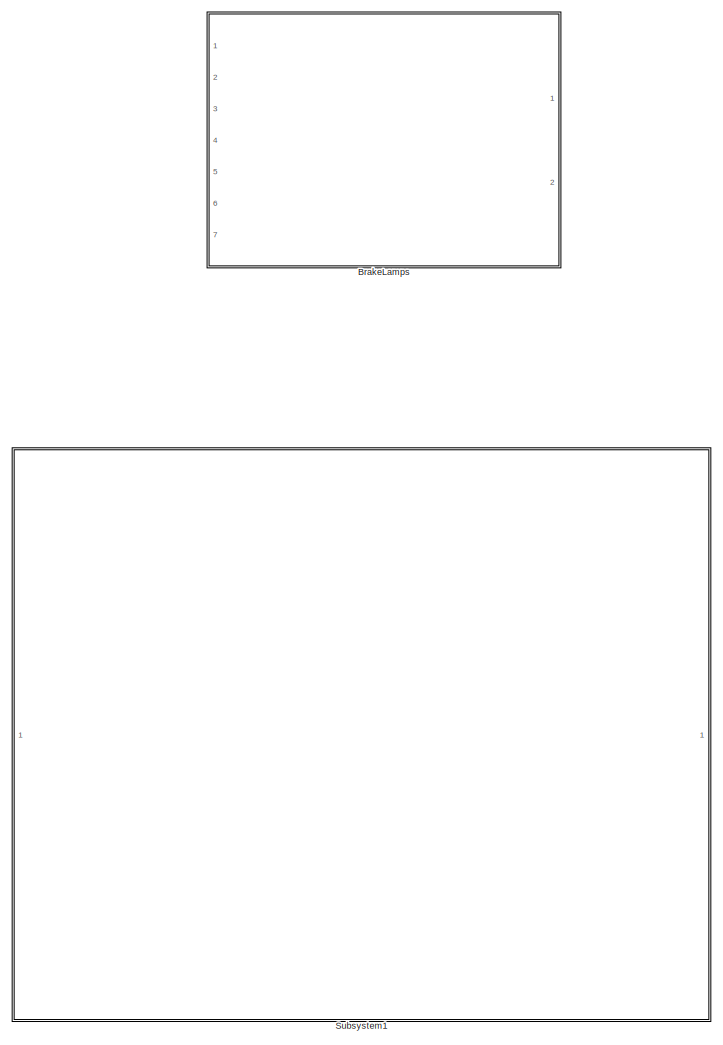
[diagram: root canvas - part 1/2, right side, full height]
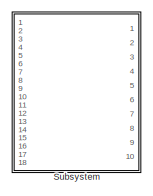
[diagram: root canvas - part 2/2, middle left region]
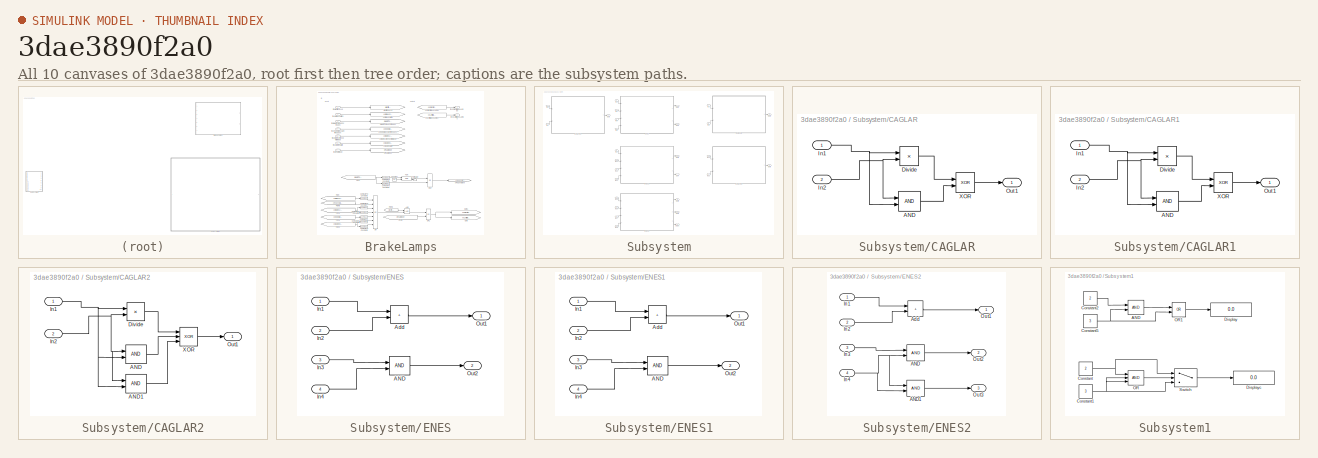
[diagram: thumbnail index - all 10 canvases of the model, root first then tree order]
MODEL slx_3dae3890f2a0
KIND model
CONFIG AbsTol = auto
CONFIG EnableMultiTasking = off
CONFIG FixedStep = auto
CONFIG MaxStep = auto
CONFIG MinStep = auto
CONFIG RelTol = 1e-3
CONFIG SampleTimeConstraint = Unconstrained
CONFIG SolverName = VariableStepAuto
CONFIG StartTime = 0.0
CONFIG StopTime = 10.0
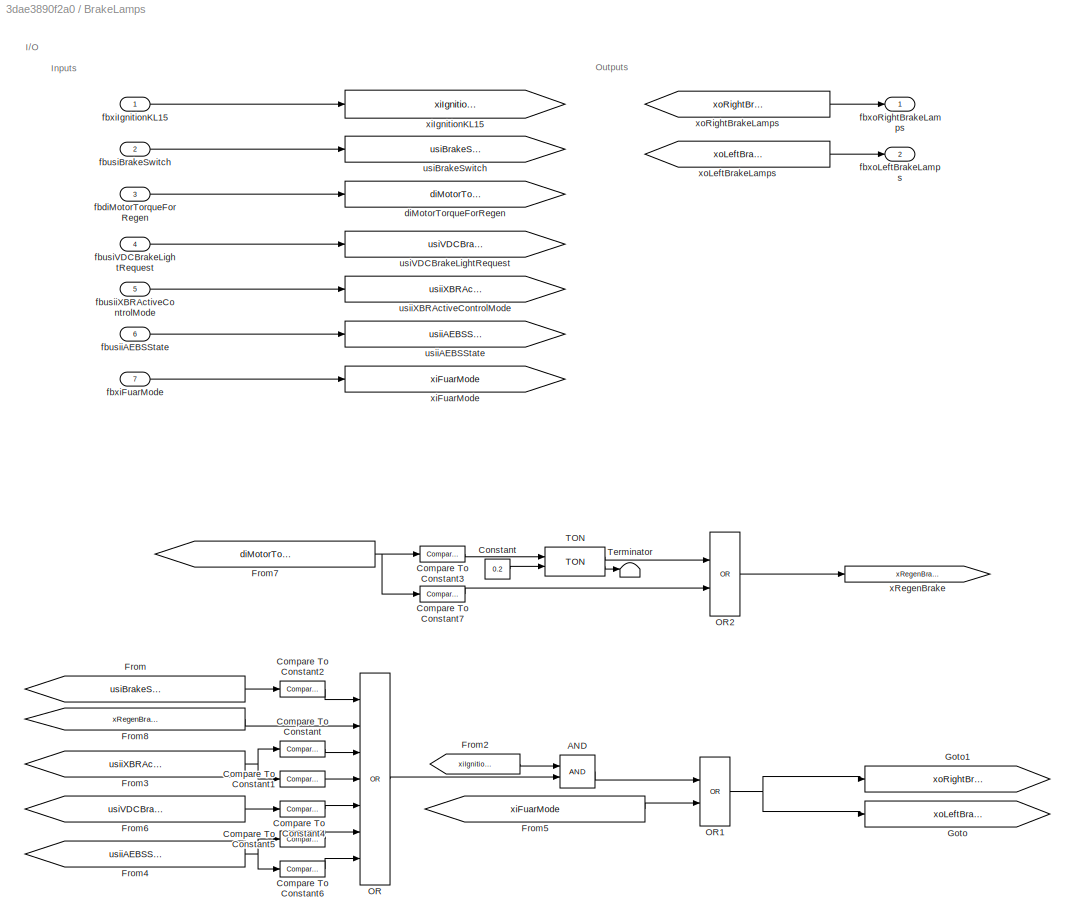
BLOCK [SubSystem] BrakeLamps
  Ports = [7, 2]
  RequestExecContextInheritance = off
  TreatAsAtomicUnit = on
BLOCK [Logic] BrakeLamps/AND
  AllPortsSameDT = off
  OutDataTypeStr = boolean
  Ports = [2, 1]
BLOCK [Reference] BrakeLamps/Compare To Constant  REF=simulink/Logic and Bit
Operations/Compare
To Constant
  Ports = [1, 1]
  SourceBlock = simulink/Logic and Bit\nOperations/Compare\nTo Constant
  SourceProductBaseCode = SL
  SourceType = Compare To Constant
BLOCK [Reference] BrakeLamps/Compare To Constant1  REF=simulink/Logic and Bit
Operations/Compare
To Constant
  Ports = [1, 1]
  SourceBlock = simulink/Logic and Bit\nOperations/Compare\nTo Constant
  SourceProductBaseCode = SL
  SourceType = Compare To Constant
BLOCK [Reference] BrakeLamps/Compare To Constant2  REF=simulink/Logic and Bit
Operations/Compare
To Constant
  Ports = [1, 1]
  SourceBlock = simulink/Logic and Bit\nOperations/Compare\nTo Constant
  SourceProductBaseCode = SL
  SourceType = Compare To Constant
BLOCK [Reference] BrakeLamps/Compare To Constant3  REF=simulink/Logic and Bit
Operations/Compare
To Constant
  Ports = [1, 1]
  SourceBlock = simulink/Logic and Bit\nOperations/Compare\nTo Constant
  SourceProductBaseCode = SL
  SourceType = Compare To Constant
BLOCK [Reference] BrakeLamps/Compare To Constant4  REF=simulink/Logic and Bit
Operations/Compare
To Constant
  Ports = [1, 1]
  SourceBlock = simulink/Logic and Bit\nOperations/Compare\nTo Constant
  SourceProductBaseCode = SL
  SourceType = Compare To Constant
BLOCK [Reference] BrakeLamps/Compare To Constant5  REF=simulink/Logic and Bit
Operations/Compare
To Constant
  Ports = [1, 1]
  SourceBlock = simulink/Logic and Bit\nOperations/Compare\nTo Constant
  SourceProductBaseCode = SL
  SourceType = Compare To Constant
BLOCK [Reference] BrakeLamps/Compare To Constant6  REF=simulink/Logic and Bit
Operations/Compare
To Constant
  Ports = [1, 1]
  SourceBlock = simulink/Logic and Bit\nOperations/Compare\nTo Constant
  SourceProductBaseCode = SL
  SourceType = Compare To Constant
BLOCK [Reference] BrakeLamps/Compare To Constant7  REF=simulink/Logic and Bit
Operations/Compare
To Constant
  Ports = [1, 1]
  SourceBlock = simulink/Logic and Bit\nOperations/Compare\nTo Constant
  SourceProductBaseCode = SL
  SourceType = Compare To Constant
BLOCK [Constant] BrakeLamps/Constant
  OutDataTypeStr = single
  Value = 0.2
BLOCK [From] BrakeLamps/From
  GotoTag = usiBrakeSwitch
BLOCK [From] BrakeLamps/From2
  GotoTag = xiIgnitionKL15
BLOCK [From] BrakeLamps/From3
  GotoTag = usiiXBRActiveControlMode
BLOCK [From] BrakeLamps/From4
  GotoTag = usiiAEBSState
BLOCK [From] BrakeLamps/From5
  GotoTag = xiFuarMode
BLOCK [From] BrakeLamps/From6
  GotoTag = usiVDCBrakeLightRequest
BLOCK [From] BrakeLamps/From7
  GotoTag = diMotorTorqueForRegen
BLOCK [From] BrakeLamps/From8
  GotoTag = xRegenBrake
BLOCK [Goto] BrakeLamps/Goto
  GotoTag = xoLeftBrakeLamps
BLOCK [Goto] BrakeLamps/Goto1
  GotoTag = xoRightBrakeLamps
BLOCK [Logic] BrakeLamps/OR
  AllPortsSameDT = off
  Inputs = 7
  Operator = OR
  OutDataTypeStr = boolean
  Ports = [7, 1]
BLOCK [Logic] BrakeLamps/OR1
  AllPortsSameDT = off
  Operator = OR
  OutDataTypeStr = boolean
  Ports = [2, 1]
BLOCK [Logic] BrakeLamps/OR2
  AllPortsSameDT = off
  Operator = OR
  OutDataTypeStr = boolean
  Ports = [2, 1]
BLOCK [Reference] BrakeLamps/TON  REF=AIOS_Lib/Standart Functions/TON
  Ports = [2, 2]
  SourceBlock = AIOS_Lib/Standart Functions/TON
  SourceProductName = AIOS Lib
BLOCK [Terminator] BrakeLamps/Terminator
BLOCK [Goto] BrakeLamps/diMotorTorqueForRegen
  GotoTag = diMotorTorqueForRegen
BLOCK [Inport] BrakeLamps/fbdiMotorTorqueForRegen
  OutDataTypeStr = double
  Port = 3
BLOCK [Inport] BrakeLamps/fbusiBrakeSwitch
  OutDataTypeStr = uint8
  Port = 2
BLOCK [Inport] BrakeLamps/fbusiVDCBrakeLightRequest
  OutDataTypeStr = uint8
  Port = 4
BLOCK [Inport] BrakeLamps/fbusiiAEBSState
  OutDataTypeStr = uint8
  Port = 6
BLOCK [Inport] BrakeLamps/fbusiiXBRActiveControlMode
  OutDataTypeStr = uint8
  Port = 5
BLOCK [Inport] BrakeLamps/fbxiFuarMode
  OutDataTypeStr = boolean
  Port = 7
BLOCK [Inport] BrakeLamps/fbxiIgnitionKL15
  OutDataTypeStr = boolean
BLOCK [Outport] BrakeLamps/fbxoLeftBrakeLamps
  OutDataTypeStr = boolean
  Port = 2
  VectorParamsAs1DForOutWhenUnconnected = off
BLOCK [Outport] BrakeLamps/fbxoRightBrakeLamps
  OutDataTypeStr = boolean
  VectorParamsAs1DForOutWhenUnconnected = off
BLOCK [Goto] BrakeLamps/usiBrakeSwitch
  GotoTag = usiBrakeSwitch
BLOCK [Goto] BrakeLamps/usiVDCBrakeLightRequest
  GotoTag = usiVDCBrakeLightRequest
BLOCK [Goto] BrakeLamps/usiiAEBSState
  GotoTag = usiiAEBSState
BLOCK [Goto] BrakeLamps/usiiXBRActiveControlMode
  GotoTag = usiiXBRActiveControlMode
BLOCK [Goto] BrakeLamps/xRegenBrake
  GotoTag = xRegenBrake
BLOCK [Goto] BrakeLamps/xiFuarMode
  GotoTag = xiFuarMode
BLOCK [Goto] BrakeLamps/xiIgnitionKL15
  GotoTag = xiIgnitionKL15
BLOCK [From] BrakeLamps/xoLeftBrakeLamps
  GotoTag = xoLeftBrakeLamps
BLOCK [From] BrakeLamps/xoRightBrakeLamps
  GotoTag = xoRightBrakeLamps
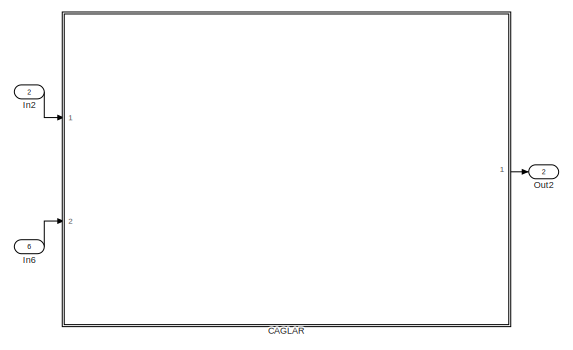
[diagram: Subsystem - part 1/3, top right region]
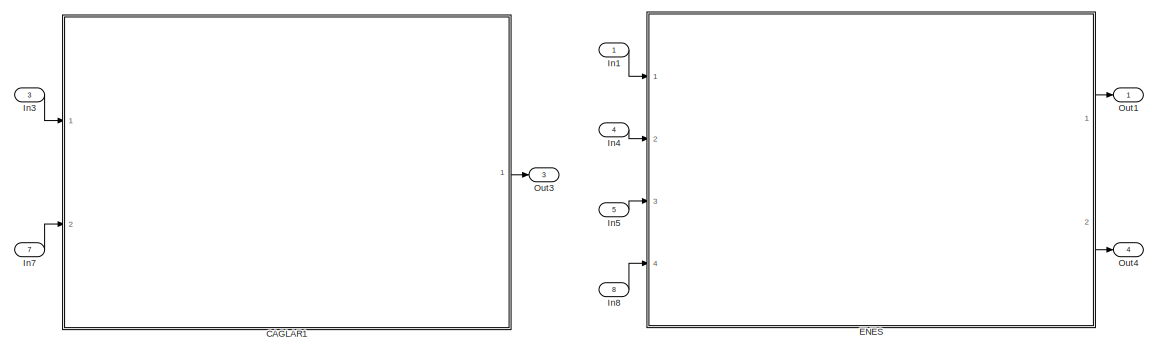
[diagram: Subsystem - part 2/3, top left region]
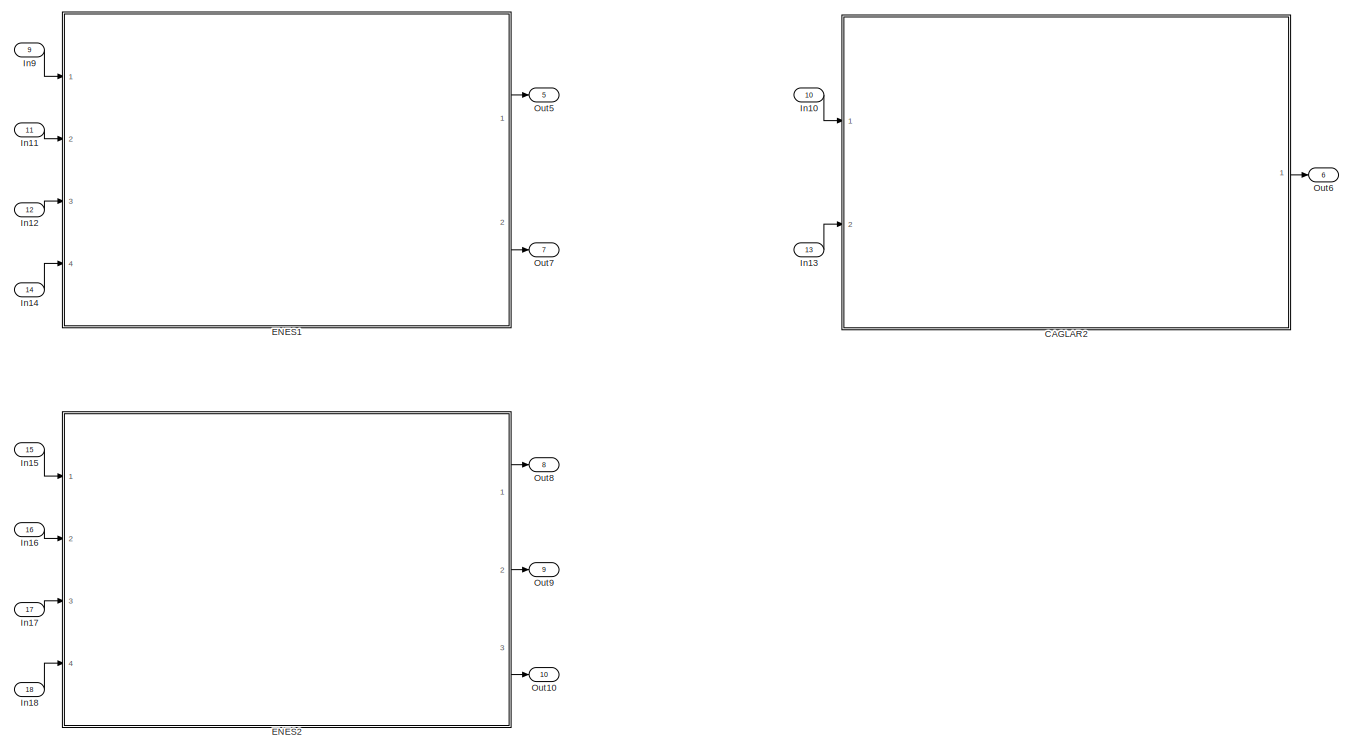
[diagram: Subsystem - part 3/3, bottom center region]
BLOCK [SubSystem] Subsystem
  Ports = [18, 10]
  RequestExecContextInheritance = off
BLOCK [SubSystem] Subsystem/CAGLAR
  Ports = [2, 1]
  RequestExecContextInheritance = off
BLOCK [Logic] Subsystem/CAGLAR/AND
  AllPortsSameDT = off
  IconShape = distinctive
  OutDataTypeStr = boolean
  Ports = [2, 1]
BLOCK [Product] Subsystem/CAGLAR/Divide
  Inputs = */
  Ports = [2, 1]
BLOCK [Inport] Subsystem/CAGLAR/In1
BLOCK [Inport] Subsystem/CAGLAR/In2
  Port = 2
BLOCK [Outport] Subsystem/CAGLAR/Out1
BLOCK [Logic] Subsystem/CAGLAR/XOR
  AllPortsSameDT = off
  IconShape = distinctive
  Operator = XOR
  OutDataTypeStr = boolean
  Ports = [2, 1]
BLOCK [SubSystem] Subsystem/CAGLAR1
  Ports = [2, 1]
  RequestExecContextInheritance = off
BLOCK [Logic] Subsystem/CAGLAR1/AND
  AllPortsSameDT = off
  IconShape = distinctive
  OutDataTypeStr = boolean
  Ports = [2, 1]
BLOCK [Product] Subsystem/CAGLAR1/Divide
  Inputs = */
  Ports = [2, 1]
BLOCK [Inport] Subsystem/CAGLAR1/In1
BLOCK [Inport] Subsystem/CAGLAR1/In2
  Port = 2
BLOCK [Outport] Subsystem/CAGLAR1/Out1
BLOCK [Logic] Subsystem/CAGLAR1/XOR
  AllPortsSameDT = off
  IconShape = distinctive
  Operator = XOR
  OutDataTypeStr = boolean
  Ports = [2, 1]
BLOCK [SubSystem] Subsystem/CAGLAR2
  Ports = [2, 1]
  RequestExecContextInheritance = off
BLOCK [Logic] Subsystem/CAGLAR2/AND
  AllPortsSameDT = off
  IconShape = distinctive
  OutDataTypeStr = boolean
  Ports = [2, 1]
BLOCK [Logic] Subsystem/CAGLAR2/AND1
  AllPortsSameDT = off
  IconShape = distinctive
  OutDataTypeStr = boolean
  Ports = [2, 1]
BLOCK [Product] Subsystem/CAGLAR2/Divide
  Inputs = */
  Ports = [2, 1]
BLOCK [Inport] Subsystem/CAGLAR2/In1
BLOCK [Inport] Subsystem/CAGLAR2/In2
  Port = 2
BLOCK [Outport] Subsystem/CAGLAR2/Out1
BLOCK [Logic] Subsystem/CAGLAR2/XOR
  AllPortsSameDT = off
  IconShape = distinctive
  Inputs = 3
  Operator = XOR
  OutDataTypeStr = boolean
  Ports = [3, 1]
BLOCK [SubSystem] Subsystem/ENES
  Ports = [4, 2]
  RequestExecContextInheritance = off
BLOCK [Logic] Subsystem/ENES/AND
  AllPortsSameDT = off
  IconShape = distinctive
  OutDataTypeStr = boolean
  Ports = [2, 1]
BLOCK [Sum] Subsystem/ENES/Add
  IconShape = rectangular
  Ports = [2, 1]
BLOCK [Inport] Subsystem/ENES/In1
BLOCK [Inport] Subsystem/ENES/In2
  Port = 2
BLOCK [Inport] Subsystem/ENES/In3
  Port = 3
BLOCK [Inport] Subsystem/ENES/In4
  Port = 4
BLOCK [Outport] Subsystem/ENES/Out1
BLOCK [Outport] Subsystem/ENES/Out2
  Port = 2
BLOCK [SubSystem] Subsystem/ENES1
  Ports = [4, 2]
  RequestExecContextInheritance = off
BLOCK [Logic] Subsystem/ENES1/AND
  AllPortsSameDT = off
  IconShape = distinctive
  OutDataTypeStr = boolean
  Ports = [2, 1]
BLOCK [Sum] Subsystem/ENES1/Add
  IconShape = rectangular
  Ports = [2, 1]
BLOCK [Inport] Subsystem/ENES1/In1
BLOCK [Inport] Subsystem/ENES1/In2
  Port = 2
BLOCK [Inport] Subsystem/ENES1/In3
  Port = 3
BLOCK [Inport] Subsystem/ENES1/In4
  Port = 4
BLOCK [Outport] Subsystem/ENES1/Out1
BLOCK [Outport] Subsystem/ENES1/Out2
  Port = 2
BLOCK [SubSystem] Subsystem/ENES2
  Ports = [4, 3]
  RequestExecContextInheritance = off
BLOCK [Logic] Subsystem/ENES2/AND
  AllPortsSameDT = off
  IconShape = distinctive
  OutDataTypeStr = boolean
  Ports = [2, 1]
BLOCK [Logic] Subsystem/ENES2/AND1
  AllPortsSameDT = off
  IconShape = distinctive
  OutDataTypeStr = boolean
  Ports = [2, 1]
BLOCK [Sum] Subsystem/ENES2/Add
  IconShape = rectangular
  Ports = [2, 1]
BLOCK [Inport] Subsystem/ENES2/In1
BLOCK [Inport] Subsystem/ENES2/In2
  Port = 2
BLOCK [Inport] Subsystem/ENES2/In3
  Port = 3
BLOCK [Inport] Subsystem/ENES2/In4
  Port = 4
BLOCK [Outport] Subsystem/ENES2/Out1
BLOCK [Outport] Subsystem/ENES2/Out2
  Port = 2
BLOCK [Outport] Subsystem/ENES2/Out3
  Port = 3
BLOCK [Inport] Subsystem/In1
BLOCK [Inport] Subsystem/In10
  Port = 10
BLOCK [Inport] Subsystem/In11
  Port = 11
BLOCK [Inport] Subsystem/In12
  Port = 12
BLOCK [Inport] Subsystem/In13
  Port = 13
BLOCK [Inport] Subsystem/In14
  Port = 14
BLOCK [Inport] Subsystem/In15
  Port = 15
BLOCK [Inport] Subsystem/In16
  Port = 16
BLOCK [Inport] Subsystem/In17
  Port = 17
BLOCK [Inport] Subsystem/In18
  Port = 18
BLOCK [Inport] Subsystem/In2
  Port = 2
BLOCK [Inport] Subsystem/In3
  Port = 3
BLOCK [Inport] Subsystem/In4
  Port = 4
BLOCK [Inport] Subsystem/In5
  Port = 5
BLOCK [Inport] Subsystem/In6
  Port = 6
BLOCK [Inport] Subsystem/In7
  Port = 7
BLOCK [Inport] Subsystem/In8
  Port = 8
BLOCK [Inport] Subsystem/In9
  Port = 9
BLOCK [Outport] Subsystem/Out1
BLOCK [Outport] Subsystem/Out10
  Port = 10
BLOCK [Outport] Subsystem/Out2
  Port = 2
BLOCK [Outport] Subsystem/Out3
  Port = 3
BLOCK [Outport] Subsystem/Out4
  Port = 4
BLOCK [Outport] Subsystem/Out5
  Port = 5
BLOCK [Outport] Subsystem/Out6
  Port = 6
BLOCK [Outport] Subsystem/Out7
  Port = 7
BLOCK [Outport] Subsystem/Out8
  Port = 8
BLOCK [Outport] Subsystem/Out9
  Port = 9
BLOCK [SubSystem] Subsystem1
  Ports = []
  RequestExecContextInheritance = off
BLOCK [Logic] Subsystem1/AND
  AllPortsSameDT = off
  IconShape = distinctive
  OutDataTypeStr = boolean
  Ports = [2, 1]
BLOCK [Constant] Subsystem1/Constant
  Value = 2
BLOCK [Constant] Subsystem1/Constant1
  Value = 3
BLOCK [Constant] Subsystem1/Constant2
  Value = 2
BLOCK [Constant] Subsystem1/Constant5
  Value = 3
BLOCK [Display] Subsystem1/Display
  Decimation = 1
  Ports = [1]
BLOCK [Display] Subsystem1/Displayc
  Decimation = 1
  Ports = [1]
BLOCK [Logic] Subsystem1/OR
  AllPortsSameDT = off
  IconShape = distinctive
  Inputs = 3
  OutDataTypeStr = boolean
  Ports = [3, 1]
BLOCK [Logic] Subsystem1/OR1
  AllPortsSameDT = off
  IconShape = distinctive
  Operator = OR
  OutDataTypeStr = boolean
  Ports = [2, 1]
BLOCK [Switch] Subsystem1/Switch
  Criteria = u2 > Threshold
  InputSameDT = off
  SaturateOnIntegerOverflow = off
  Threshold = 1
ANNOTATION BrakeLamps: I/O
ANNOTATION BrakeLamps: Inputs
ANNOTATION BrakeLamps: Outputs
LINE BrakeLamps/AND:1 -> BrakeLamps/OR1:1
LINE BrakeLamps/Compare To Constant1:1 -> BrakeLamps/OR:4
LINE BrakeLamps/Compare To Constant2:1 -> BrakeLamps/OR:1
LINE BrakeLamps/Compare To Constant3:1 -> BrakeLamps/TON:1
LINE BrakeLamps/Compare To Constant4:1 -> BrakeLamps/OR:5
LINE BrakeLamps/Compare To Constant5:1 -> BrakeLamps/OR:6
LINE BrakeLamps/Compare To Constant6:1 -> BrakeLamps/OR:7
LINE BrakeLamps/Compare To Constant7:1 -> BrakeLamps/OR2:2
LINE BrakeLamps/Compare To Constant:1 -> BrakeLamps/OR:3
LINE BrakeLamps/Constant:1 -> BrakeLamps/TON:2
LINE BrakeLamps/From2:1 -> BrakeLamps/AND:1
NET BrakeLamps/From3:1 -> BrakeLamps/Compare To Constant1:1, BrakeLamps/Compare To Constant:1
NET BrakeLamps/From4:1 -> BrakeLamps/Compare To Constant5:1, BrakeLamps/Compare To Constant6:1
LINE BrakeLamps/From5:1 -> BrakeLamps/OR1:2
LINE BrakeLamps/From6:1 -> BrakeLamps/Compare To Constant4:1
NET BrakeLamps/From7:1 -> BrakeLamps/Compare To Constant3:1, BrakeLamps/Compare To Constant7:1
LINE BrakeLamps/From8:1 -> BrakeLamps/OR:2
LINE BrakeLamps/From:1 -> BrakeLamps/Compare To Constant2:1
NET BrakeLamps/OR1:1 -> BrakeLamps/Goto1:1, BrakeLamps/Goto:1
LINE BrakeLamps/OR2:1 -> BrakeLamps/xRegenBrake:1
LINE BrakeLamps/OR:1 -> BrakeLamps/AND:2
LINE BrakeLamps/TON:1 -> BrakeLamps/OR2:1
LINE BrakeLamps/TON:2 -> BrakeLamps/Terminator:1
LINE BrakeLamps/fbdiMotorTorqueForRegen:1 -> BrakeLamps/diMotorTorqueForRegen:1
LINE BrakeLamps/fbusiBrakeSwitch:1 -> BrakeLamps/usiBrakeSwitch:1
LINE BrakeLamps/fbusiVDCBrakeLightRequest:1 -> BrakeLamps/usiVDCBrakeLightRequest:1
LINE BrakeLamps/fbusiiAEBSState:1 -> BrakeLamps/usiiAEBSState:1
LINE BrakeLamps/fbusiiXBRActiveControlMode:1 -> BrakeLamps/usiiXBRActiveControlMode:1
LINE BrakeLamps/fbxiFuarMode:1 -> BrakeLamps/xiFuarMode:1
LINE BrakeLamps/fbxiIgnitionKL15:1 -> BrakeLamps/xiIgnitionKL15:1
LINE BrakeLamps/xoLeftBrakeLamps:1 -> BrakeLamps/fbxoLeftBrakeLamps:1
LINE BrakeLamps/xoRightBrakeLamps:1 -> BrakeLamps/fbxoRightBrakeLamps:1
LINE Subsystem/CAGLAR/AND:1 -> Subsystem/CAGLAR/XOR:2
LINE Subsystem/CAGLAR/Divide:1 -> Subsystem/CAGLAR/XOR:1
NET Subsystem/CAGLAR/In1:1 -> Subsystem/CAGLAR/AND:2, Subsystem/CAGLAR/Divide:1
NET Subsystem/CAGLAR/In2:1 -> Subsystem/CAGLAR/AND:1, Subsystem/CAGLAR/Divide:2
LINE Subsystem/CAGLAR/XOR:1 -> Subsystem/CAGLAR/Out1:1
LINE Subsystem/CAGLAR1/AND:1 -> Subsystem/CAGLAR1/XOR:2
LINE Subsystem/CAGLAR1/Divide:1 -> Subsystem/CAGLAR1/XOR:1
NET Subsystem/CAGLAR1/In1:1 -> Subsystem/CAGLAR1/AND:2, Subsystem/CAGLAR1/Divide:1
NET Subsystem/CAGLAR1/In2:1 -> Subsystem/CAGLAR1/AND:1, Subsystem/CAGLAR1/Divide:2
LINE Subsystem/CAGLAR1/XOR:1 -> Subsystem/CAGLAR1/Out1:1
LINE Subsystem/CAGLAR1:1 -> Subsystem/Out3:1
LINE Subsystem/CAGLAR2/AND1:1 -> Subsystem/CAGLAR2/XOR:3
LINE Subsystem/CAGLAR2/AND:1 -> Subsystem/CAGLAR2/XOR:2
LINE Subsystem/CAGLAR2/Divide:1 -> Subsystem/CAGLAR2/XOR:1
NET Subsystem/CAGLAR2/In1:1 -> Subsystem/CAGLAR2/AND1:2, Subsystem/CAGLAR2/AND:2, Subsystem/CAGLAR2/Divide:1
NET Subsystem/CAGLAR2/In2:1 -> Subsystem/CAGLAR2/AND1:1, Subsystem/CAGLAR2/AND:1, Subsystem/CAGLAR2/Divide:2
LINE Subsystem/CAGLAR2/XOR:1 -> Subsystem/CAGLAR2/Out1:1
LINE Subsystem/CAGLAR2:1 -> Subsystem/Out6:1
LINE Subsystem/CAGLAR:1 -> Subsystem/Out2:1
LINE Subsystem/ENES/AND:1 -> Subsystem/ENES/Out2:1
LINE Subsystem/ENES/Add:1 -> Subsystem/ENES/Out1:1
LINE Subsystem/ENES/In1:1 -> Subsystem/ENES/Add:1
LINE Subsystem/ENES/In2:1 -> Subsystem/ENES/Add:2
LINE Subsystem/ENES/In3:1 -> Subsystem/ENES/AND:1
LINE Subsystem/ENES/In4:1 -> Subsystem/ENES/AND:2
LINE Subsystem/ENES1/AND:1 -> Subsystem/ENES1/Out2:1
LINE Subsystem/ENES1/Add:1 -> Subsystem/ENES1/Out1:1
LINE Subsystem/ENES1/In1:1 -> Subsystem/ENES1/Add:1
LINE Subsystem/ENES1/In2:1 -> Subsystem/ENES1/Add:2
LINE Subsystem/ENES1/In3:1 -> Subsystem/ENES1/AND:1
LINE Subsystem/ENES1/In4:1 -> Subsystem/ENES1/AND:2
LINE Subsystem/ENES1:1 -> Subsystem/Out5:1
LINE Subsystem/ENES1:2 -> Subsystem/Out7:1
LINE Subsystem/ENES2/AND1:1 -> Subsystem/ENES2/Out3:1
LINE Subsystem/ENES2/AND:1 -> Subsystem/ENES2/Out2:1
LINE Subsystem/ENES2/Add:1 -> Subsystem/ENES2/Out1:1
LINE Subsystem/ENES2/In1:1 -> Subsystem/ENES2/Add:1
LINE Subsystem/ENES2/In2:1 -> Subsystem/ENES2/Add:2
LINE Subsystem/ENES2/In3:1 -> Subsystem/ENES2/AND:1
NET Subsystem/ENES2/In4:1 -> Subsystem/ENES2/AND1:1, Subsystem/ENES2/AND1:2, Subsystem/ENES2/AND:2
LINE Subsystem/ENES2:1 -> Subsystem/Out8:1
LINE Subsystem/ENES2:2 -> Subsystem/Out9:1
LINE Subsystem/ENES2:3 -> Subsystem/Out10:1
LINE Subsystem/ENES:1 -> Subsystem/Out1:1
LINE Subsystem/ENES:2 -> Subsystem/Out4:1
LINE Subsystem/In10:1 -> Subsystem/CAGLAR2:1
LINE Subsystem/In11:1 -> Subsystem/ENES1:2
LINE Subsystem/In12:1 -> Subsystem/ENES1:3
LINE Subsystem/In13:1 -> Subsystem/CAGLAR2:2
LINE Subsystem/In14:1 -> Subsystem/ENES1:4
LINE Subsystem/In15:1 -> Subsystem/ENES2:1
LINE Subsystem/In16:1 -> Subsystem/ENES2:2
LINE Subsystem/In17:1 -> Subsystem/ENES2:3
LINE Subsystem/In18:1 -> Subsystem/ENES2:4
LINE Subsystem/In1:1 -> Subsystem/ENES:1
LINE Subsystem/In2:1 -> Subsystem/CAGLAR:1
LINE Subsystem/In3:1 -> Subsystem/CAGLAR1:1
LINE Subsystem/In4:1 -> Subsystem/ENES:2
LINE Subsystem/In5:1 -> Subsystem/ENES:3
LINE Subsystem/In6:1 -> Subsystem/CAGLAR:2
LINE Subsystem/In7:1 -> Subsystem/CAGLAR1:2
LINE Subsystem/In8:1 -> Subsystem/ENES:4
LINE Subsystem/In9:1 -> Subsystem/ENES1:1
LINE Subsystem1/AND:1 -> Subsystem1/OR1:1
NET Subsystem1/Constant1:1 -> Subsystem1/OR:2, Subsystem1/OR:3, Subsystem1/Switch:3
LINE Subsystem1/Constant2:1 -> Subsystem1/AND:1
NET Subsystem1/Constant5:1 -> Subsystem1/AND:2, Subsystem1/OR1:2
NET Subsystem1/Constant:1 -> Subsystem1/OR:1, Subsystem1/Switch:1
LINE Subsystem1/OR1:1 -> Subsystem1/Display:1
LINE Subsystem1/OR:1 -> Subsystem1/Switch:2
LINE Subsystem1/Switch:1 -> Subsystem1/Displayc:1
note: NET lines group one-source signal fan-out (src -> all destinations, sorted); 1:1 wires keep LINE
